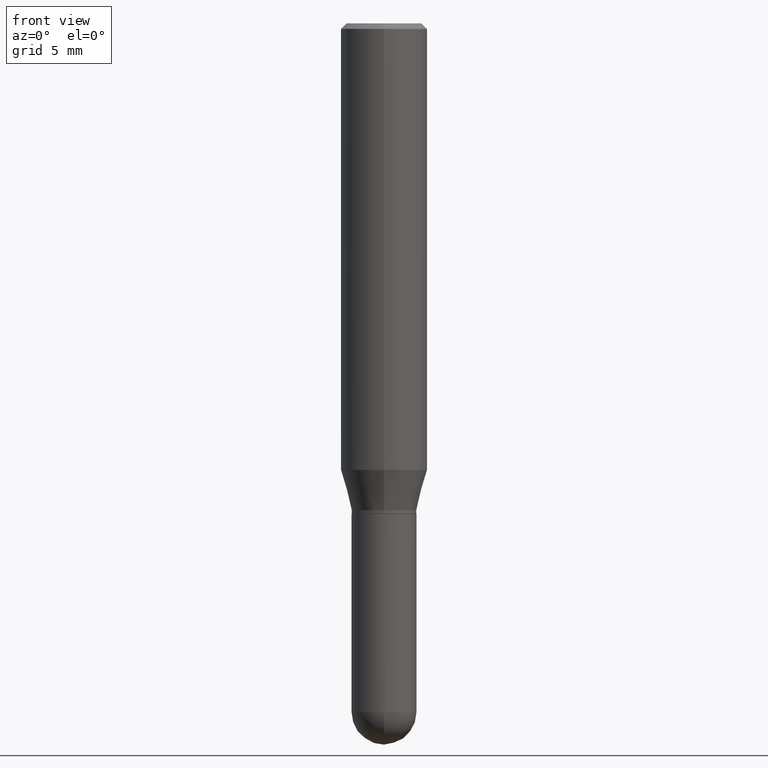
[diagram: clean part render]
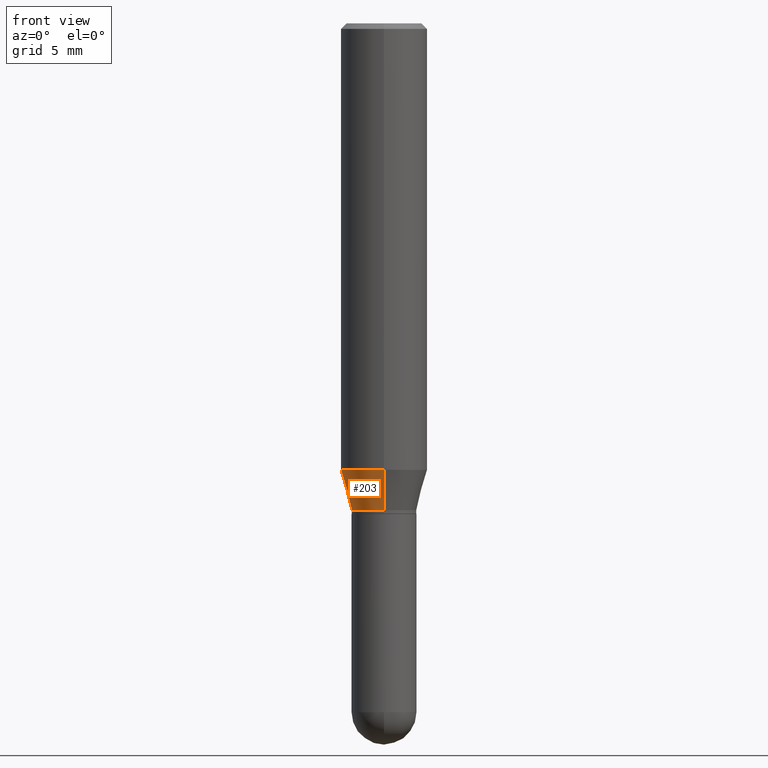
[diagram: same view with one face highlighted and labeled with its STEP entity id]
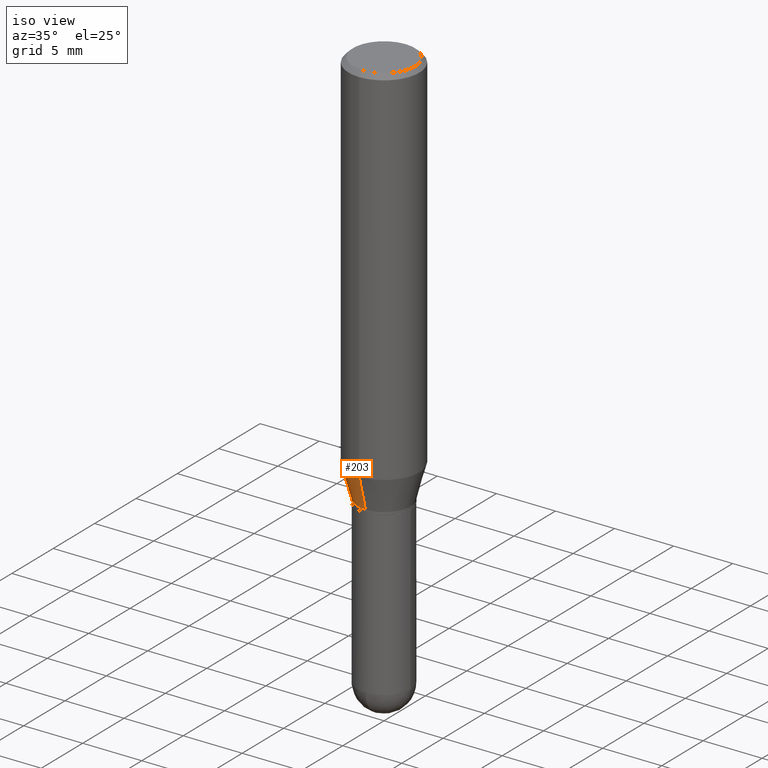
[diagram: same view with one face highlighted and labeled with its STEP entity id]
A machine part, front view. The second image highlights one B-rep face of the part: STEP entity #203.
A second angle (iso view) of the same face is appended — the face is thin or edge-on in the first view.
In plain terms, the highlighted conical surface has half-angle 15 deg.
Its self-contained STEP definition (entity closure, byte-faithful):
#17 = VECTOR ( 'NONE', #215, 39.37007874015747433 ) ;
#23 = ORIENTED_EDGE ( 'NONE', *, *, #63, .F. ) ;
#34 = AXIS2_PLACEMENT_3D ( 'NONE', #115, #271, #40 ) ;
#39 = EDGE_LOOP ( 'NONE', ( #315, #364, #319, #23 ) ) ;
#40 = DIRECTION ( 'NONE',  ( -6.982962677686265922E-15, -1.000000000000000000, 3.469747663417777397E-15 ) ) ;
#63 = EDGE_CURVE ( 'NONE', #452, #487, #443, .T. ) ;
#66 = VERTEX_POINT ( 'NONE', #432 ) ;
#93 = DIRECTION ( 'NONE',  ( -6.982962677686264344E-15, -1.000000000000000000, 3.083349879982241481E-15 ) ) ;
#95 = CARTESIAN_POINT ( 'NONE',  ( -8.246878922347182859E-16, -0.1181000000000042710, -1.218504501176717714 ) ) ;
#98 = VERTEX_POINT ( 'NONE', #234 ) ;
#115 = CARTESIAN_POINT ( 'NONE',  ( 2.979624522571035712E-29, -4.254658140543858788E-15, -1.218504501176718158 ) ) ;
#137 = EDGE_CURVE ( 'NONE', #66, #452, #193, .T. ) ;
#138 = CARTESIAN_POINT ( 'NONE',  ( 3.248842443228486773E-29, -4.639079133534330158E-15, -1.328600000000000225 ) ) ;
#143 = AXIS2_PLACEMENT_3D ( 'NONE', #138, #453, #93 ) ;
#171 = CARTESIAN_POINT ( 'NONE',  ( -6.186904932429700179E-16, -0.08860000000000455012, -1.328599999999999781 ) ) ;
#176 = EDGE_CURVE ( 'NONE', #98, #487, #408, .T. ) ;
#193 = LINE ( 'NONE', #362, #17 ) ;
#203 = ADVANCED_FACE ( 'NONE', ( #208 ), #233, .T. ) ;
#208 = FACE_OUTER_BOUND ( 'NONE', #39, .T. ) ;
#215 = DIRECTION ( 'NONE',  ( 1.839019923739599526E-15, 0.2588190451025248473, 0.9659258262890673130 ) ) ;
#218 = AXIS2_PLACEMENT_3D ( 'NONE', #368, #484, #331 ) ;
#233 = CONICAL_SURFACE ( 'NONE', #218, 0.08859999999999991493, 0.2617993877991501295 ) ;
#234 = CARTESIAN_POINT ( 'NONE',  ( -6.186904932429700179E-16, -0.08860000000000455012, -1.328599999999999781 ) ) ;
#263 = CARTESIAN_POINT ( 'NONE',  ( 8.391509709327078780E-16, 0.1180999999999957362, -1.218504501176718602 ) ) ;
#268 = EDGE_CURVE ( 'NONE', #66, #98, #281, .T. ) ;
#271 = DIRECTION ( 'NONE',  ( -2.445312692479667883E-29, 3.491704902554816982E-15, 1.000000000000000000 ) ) ;
#281 = CIRCLE ( 'NONE', #143, 0.08859999999999991493 ) ;
#298 = VECTOR ( 'NONE', #334, 39.37007874015749564 ) ;
#315 = ORIENTED_EDGE ( 'NONE', *, *, #137, .F. ) ;
#319 = ORIENTED_EDGE ( 'NONE', *, *, #176, .T. ) ;
#331 = DIRECTION ( 'NONE',  ( -6.982962677686264344E-15, -1.000000000000000000, 3.083349879982241481E-15 ) ) ;
#334 = DIRECTION ( 'NONE',  ( -1.807323732225328562E-15, -0.2588190451025179639, 0.9659258262890689783 ) ) ;
#362 = CARTESIAN_POINT ( 'NONE',  ( 6.295408638834805036E-16, 0.08859999999999526588, -1.328600000000000447 ) ) ;
#364 = ORIENTED_EDGE ( 'NONE', *, *, #268, .T. ) ;
#368 = CARTESIAN_POINT ( 'NONE',  ( 3.248842443228486773E-29, -4.639079133534330158E-15, -1.328600000000000225 ) ) ;
#408 = LINE ( 'NONE', #171, #298 ) ;
#432 = CARTESIAN_POINT ( 'NONE',  ( 7.343459174080941908E-16, 0.08859999999999526588, -1.328600000000000447 ) ) ;
#443 = CIRCLE ( 'NONE', #34, 0.1180999999999999966 ) ;
#452 = VERTEX_POINT ( 'NONE', #263 ) ;
#453 = DIRECTION ( 'NONE',  ( -2.445312692479667883E-29, 3.491704902554816982E-15, 1.000000000000000000 ) ) ;
#484 = DIRECTION ( 'NONE',  ( -2.445312692479667883E-29, 3.491704902554816982E-15, 1.000000000000000000 ) ) ;
#487 = VERTEX_POINT ( 'NONE', #95 ) ;